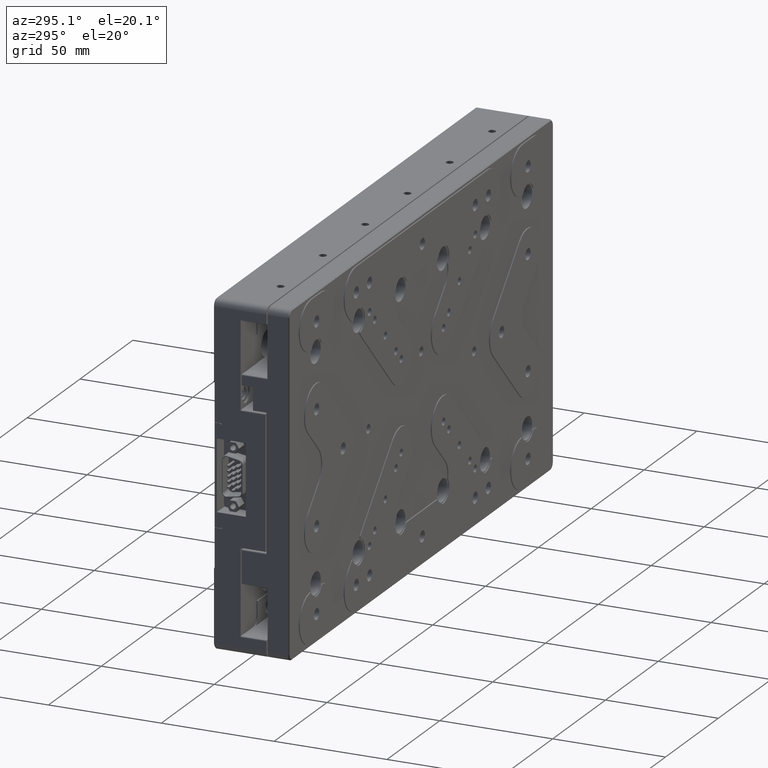
[diagram: clean part render]
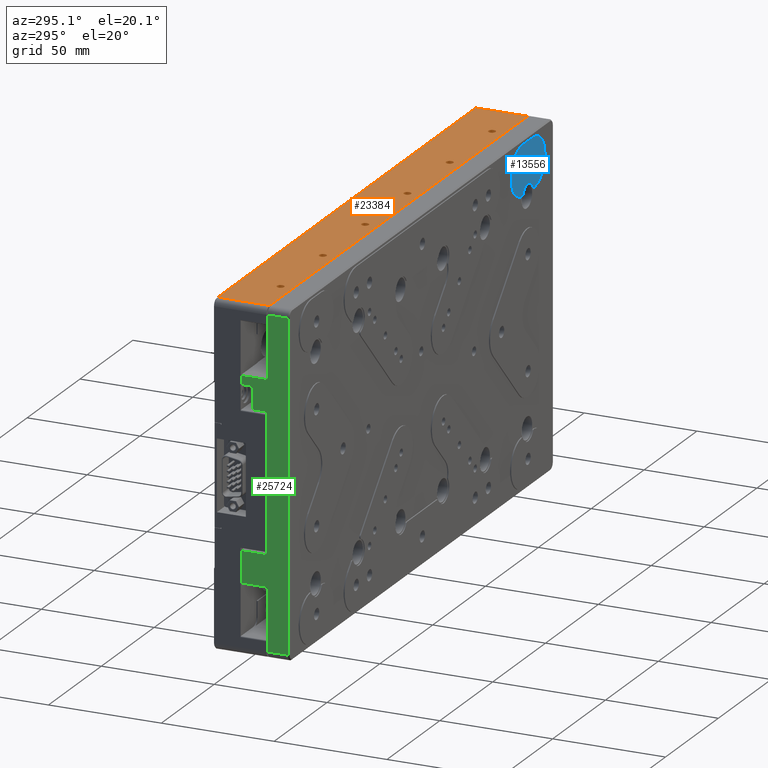
[diagram: same view with three faces highlighted in distinct colors, each labeled with its STEP entity id]
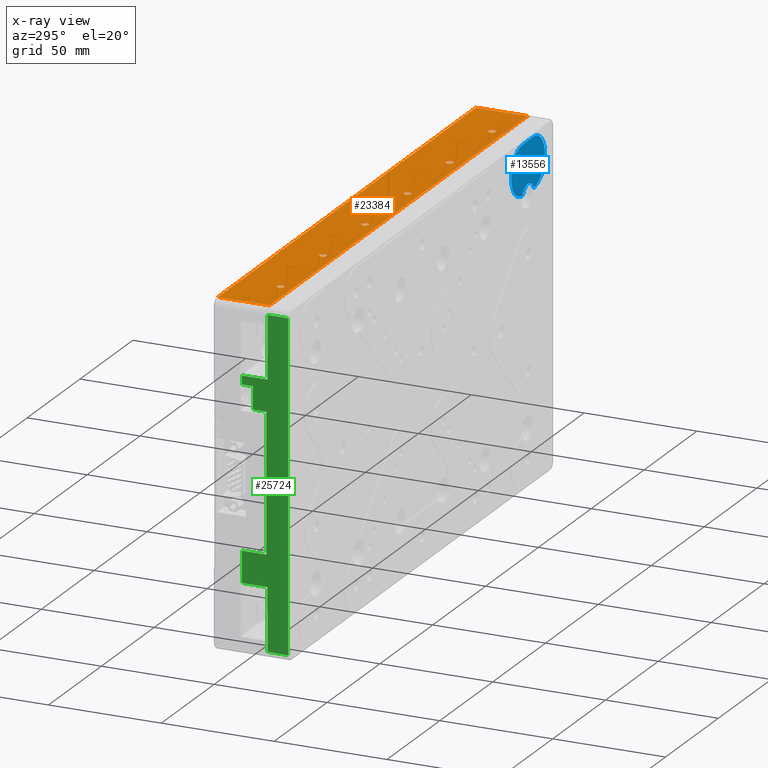
[diagram: x-ray of the same camera — body ghosted, the three highlighted faces saturated]
A machine part, auxiliary view with three faces highlighted in distinct colors.
The next image is the same camera in x-ray (body ghosted, the three faces saturated) — at least one of them is partly hidden behind the body in this view.
Their STEP definitions:

[orange] entity #23384 — the highlighted planar face has unit normal (0, 0, 1).
#173 = DIRECTION ( 'NONE',  ( 1.000000000000000000, 0.000000000000000000, 0.000000000000000000 ) ) ;
#374 = DIRECTION ( 'NONE',  ( 1.000000000000000000, 0.000000000000000000, 0.000000000000000000 ) ) ;
#1403 = ORIENTED_EDGE ( 'NONE', *, *, #21164, .T. ) ;
#1487 = FACE_BOUND ( 'NONE', #26889, .T. ) ;
#1881 = VERTEX_POINT ( 'NONE', #25818 ) ;
#2913 = LINE ( 'NONE', #19146, #31716 ) ;
#3650 = CIRCLE ( 'NONE', #24744, 1.649999999999998579 ) ;
#4187 = FACE_BOUND ( 'NONE', #8792, .T. ) ;
#4421 = CIRCLE ( 'NONE', #24353, 1.649999999999998579 ) ;
#4467 = EDGE_LOOP ( 'NONE', ( #33427 ) ) ;
#5864 = DIRECTION ( 'NONE',  ( -1.000000000000000000, -0.000000000000000000, 0.000000000000000000 ) ) ;
#5935 = EDGE_CURVE ( 'NONE', #16592, #9941, #30504, .T. ) ;
#5996 = LINE ( 'NONE', #29929, #34675 ) ;
#6252 = CARTESIAN_POINT ( 'NONE',  ( 122.0000000000000000, 12.00000000000000000, 75.00000000000000000 ) ) ;
#6528 = ORIENTED_EDGE ( 'NONE', *, *, #13417, .T. ) ;
#6923 = VERTEX_POINT ( 'NONE', #35352 ) ;
#7217 = PLANE ( 'NONE',  #20629 ) ;
#7654 = VERTEX_POINT ( 'NONE', #31604 ) ;
#7782 = CARTESIAN_POINT ( 'NONE',  ( -18.35000000000000142, -6.000000000000000000, 75.00000000000000000 ) ) ;
#7848 = VECTOR ( 'NONE', #5864, 1000.000000000000000 ) ;
#8443 = DIRECTION ( 'NONE',  ( 1.000000000000000000, 0.000000000000000000, -0.000000000000000000 ) ) ;
#8455 = AXIS2_PLACEMENT_3D ( 'NONE', #27218, #21328, #13475 ) ;
#8759 = DIRECTION ( 'NONE',  ( -0.000000000000000000, -0.000000000000000000, -1.000000000000000000 ) ) ;
#8792 = EDGE_LOOP ( 'NONE', ( #1403 ) ) ;
#8888 = CARTESIAN_POINT ( 'NONE',  ( 100.0000000000000000, -6.000000000000000000, 75.00000000000000000 ) ) ;
#9066 = DIRECTION ( 'NONE',  ( 1.000000000000000000, 0.000000000000000000, 0.000000000000000000 ) ) ;
#9941 = VERTEX_POINT ( 'NONE', #21046 ) ;
#9993 = VECTOR ( 'NONE', #17141, 1000.000000000000000 ) ;
#10215 = ORIENTED_EDGE ( 'NONE', *, *, #12899, .T. ) ;
#10234 = FACE_OUTER_BOUND ( 'NONE', #12055, .T. ) ;
#10257 = EDGE_LOOP ( 'NONE', ( #13975 ) ) ;
#10327 = VERTEX_POINT ( 'NONE', #34968 ) ;
#10621 = DIRECTION ( 'NONE',  ( -0.000000000000000000, -0.000000000000000000, -1.000000000000000000 ) ) ;
#12055 = EDGE_LOOP ( 'NONE', ( #35313, #12094, #25509, #6528, #10215, #29852 ) ) ;
#12094 = ORIENTED_EDGE ( 'NONE', *, *, #29578, .T. ) ;
#12374 = CIRCLE ( 'NONE', #15816, 1.649999999999998579 ) ;
#12386 = FACE_BOUND ( 'NONE', #20903, .T. ) ;
#12899 = EDGE_CURVE ( 'NONE', #6923, #16592, #33394, .T. ) ;
#13085 = AXIS2_PLACEMENT_3D ( 'NONE', #8888, #24953, #9066 ) ;
#13086 = DIRECTION ( 'NONE',  ( 0.000000000000000000, 0.000000000000000000, 1.000000000000000000 ) ) ;
#13417 = EDGE_CURVE ( 'NONE', #1881, #6923, #2913, .T. ) ;
#13475 = DIRECTION ( 'NONE',  ( 1.000000000000000000, 0.000000000000000000, 0.000000000000000000 ) ) ;
#13676 = VERTEX_POINT ( 'NONE', #7782 ) ;
#13975 = ORIENTED_EDGE ( 'NONE', *, *, #31217, .T. ) ;
#14137 = CIRCLE ( 'NONE', #8455, 1.649999999999998579 ) ;
#15137 = DIRECTION ( 'NONE',  ( 1.000000000000000000, 0.000000000000000000, 0.000000000000000000 ) ) ;
#15554 = ORIENTED_EDGE ( 'NONE', *, *, #16958, .T. ) ;
#15759 = EDGE_CURVE ( 'NONE', #7654, #7654, #3650, .T. ) ;
#15816 = AXIS2_PLACEMENT_3D ( 'NONE', #35090, #10621, #26534 ) ;
#15853 = CARTESIAN_POINT ( 'NONE',  ( 122.0000000138499985, 11.50000000097125152, 74.99999999967624831 ) ) ;
#16592 = VERTEX_POINT ( 'NONE', #15853 ) ;
#16825 = DIRECTION ( 'NONE',  ( -0.000000000000000000, -0.000000000000000000, -1.000000000000000000 ) ) ;
#16917 = CARTESIAN_POINT ( 'NONE',  ( 101.6500000000000057, -6.000000000000000000, 75.00000000000000000 ) ) ;
#16958 = EDGE_CURVE ( 'NONE', #10327, #10327, #12374, .T. ) ;
#17141 = DIRECTION ( 'NONE',  ( -0.000000000000000000, 1.000000000000000000, 0.000000000000000000 ) ) ;
#17804 = CARTESIAN_POINT ( 'NONE',  ( -58.35000000000000142, -6.000000000000000000, 75.00000000000000000 ) ) ;
#18099 = CARTESIAN_POINT ( 'NONE',  ( -40.00000000000000711, 11.50000000000000000, 75.00000000000000000 ) ) ;
#18283 = VERTEX_POINT ( 'NONE', #23470 ) ;
#18445 = DIRECTION ( 'NONE',  ( 1.000000000000000000, 0.000000000000000000, -0.000000000000000000 ) ) ;
#19146 = CARTESIAN_POINT ( 'NONE',  ( -125.0000000000000000, -11.50000000000000000, 75.00000000000000000 ) ) ;
#19759 = EDGE_CURVE ( 'NONE', #32747, #9941, #5996, .T. ) ;
#20629 = AXIS2_PLACEMENT_3D ( 'NONE', #29004, #13086, #18445 ) ;
#20903 = EDGE_LOOP ( 'NONE', ( #30690 ) ) ;
#20923 = CIRCLE ( 'NONE', #32892, 1.649999999999998579 ) ;
#20949 = VECTOR ( 'NONE', #22456, 1000.000000000000000 ) ;
#21046 = CARTESIAN_POINT ( 'NONE',  ( 40.00000000000000000, 11.50000000064749983, 75.00000000000000000 ) ) ;
#21164 = EDGE_CURVE ( 'NONE', #30669, #30669, #35340, .T. ) ;
#21328 = DIRECTION ( 'NONE',  ( -0.000000000000000000, -0.000000000000000000, -1.000000000000000000 ) ) ;
#22456 = DIRECTION ( 'NONE',  ( 0.000000000000000000, -1.000000000000000000, -0.000000000000000000 ) ) ;
#23201 = VECTOR ( 'NONE', #24185, 1000.000000000000000 ) ;
#23276 = FACE_BOUND ( 'NONE', #32245, .T. ) ;
#23384 = ADVANCED_FACE ( 'NONE', ( #4187, #25964, #1487, #12386, #23276, #34182, #10234 ), #7217, .T. ) ;
#23470 = CARTESIAN_POINT ( 'NONE',  ( 61.64999999999999858, -6.000000000000000000, 75.00000000000000000 ) ) ;
#23592 = VERTEX_POINT ( 'NONE', #33264 ) ;
#23667 = LINE ( 'NONE', #34909, #23201 ) ;
#23862 = CARTESIAN_POINT ( 'NONE',  ( -20.00000000000000000, -6.000000000000000000, 75.00000000000000000 ) ) ;
#24185 = DIRECTION ( 'NONE',  ( -1.000000000000000000, -0.000000000000000000, 0.000000000000000000 ) ) ;
#24353 = AXIS2_PLACEMENT_3D ( 'NONE', #23862, #34933, #15137 ) ;
#24642 = CARTESIAN_POINT ( 'NONE',  ( -60.00000000000000000, -6.000000000000000000, 75.00000000000000000 ) ) ;
#24744 = AXIS2_PLACEMENT_3D ( 'NONE', #29691, #16825, #374 ) ;
#24953 = DIRECTION ( 'NONE',  ( -0.000000000000000000, -0.000000000000000000, -1.000000000000000000 ) ) ;
#25200 = EDGE_CURVE ( 'NONE', #31377, #31377, #20923, .T. ) ;
#25509 = ORIENTED_EDGE ( 'NONE', *, *, #25772, .T. ) ;
#25772 = EDGE_CURVE ( 'NONE', #23592, #1881, #31382, .T. ) ;
#25818 = CARTESIAN_POINT ( 'NONE',  ( -122.0000000000000000, -11.50000000000000178, 75.00000000000000000 ) ) ;
#25831 = EDGE_CURVE ( 'NONE', #13676, #13676, #4421, .T. ) ;
#25964 = FACE_BOUND ( 'NONE', #4467, .T. ) ;
#26534 = DIRECTION ( 'NONE',  ( 1.000000000000000000, 0.000000000000000000, 0.000000000000000000 ) ) ;
#26889 = EDGE_LOOP ( 'NONE', ( #29940 ) ) ;
#27218 = CARTESIAN_POINT ( 'NONE',  ( 60.00000000000000000, -6.000000000000000000, 75.00000000000000000 ) ) ;
#27810 = CARTESIAN_POINT ( 'NONE',  ( -122.0000000000000000, 12.00000000000000000, 75.00000000000000000 ) ) ;
#28337 = CARTESIAN_POINT ( 'NONE',  ( -125.0000000000000000, 11.50000000258999933, 75.00000000000000000 ) ) ;
#29004 = CARTESIAN_POINT ( 'NONE',  ( -125.0000000000000000, 12.00000000000000000, 75.00000000000000000 ) ) ;
#29578 = EDGE_CURVE ( 'NONE', #32747, #23592, #23667, .T. ) ;
#29691 = CARTESIAN_POINT ( 'NONE',  ( -100.0000000000000000, -6.000000000000000000, 75.00000000000000000 ) ) ;
#29852 = ORIENTED_EDGE ( 'NONE', *, *, #5935, .T. ) ;
#29929 = CARTESIAN_POINT ( 'NONE',  ( 0.000000000000000000, 11.50000000000000000, 75.00000000000000000 ) ) ;
#29940 = ORIENTED_EDGE ( 'NONE', *, *, #25200, .T. ) ;
#30504 = LINE ( 'NONE', #28337, #7848 ) ;
#30669 = VERTEX_POINT ( 'NONE', #16917 ) ;
#30690 = ORIENTED_EDGE ( 'NONE', *, *, #25831, .T. ) ;
#31217 = EDGE_CURVE ( 'NONE', #18283, #18283, #14137, .T. ) ;
#31377 = VERTEX_POINT ( 'NONE', #17804 ) ;
#31382 = LINE ( 'NONE', #27810, #20949 ) ;
#31604 = CARTESIAN_POINT ( 'NONE',  ( -98.35000000000000853, -6.000000000000000000, 75.00000000000000000 ) ) ;
#31716 = VECTOR ( 'NONE', #8443, 1000.000000000000000 ) ;
#32245 = EDGE_LOOP ( 'NONE', ( #15554 ) ) ;
#32747 = VERTEX_POINT ( 'NONE', #18099 ) ;
#32892 = AXIS2_PLACEMENT_3D ( 'NONE', #24642, #8759, #173 ) ;
#33138 = DIRECTION ( 'NONE',  ( 1.000000000000000000, 0.000000000000000000, -0.000000000000000000 ) ) ;
#33264 = CARTESIAN_POINT ( 'NONE',  ( -122.0000000000000000, 11.50000000693796665, 74.99999999309069665 ) ) ;
#33394 = LINE ( 'NONE', #6252, #9993 ) ;
#33427 = ORIENTED_EDGE ( 'NONE', *, *, #15759, .T. ) ;
#34182 = FACE_BOUND ( 'NONE', #10257, .T. ) ;
#34675 = VECTOR ( 'NONE', #33138, 1000.000000000000000 ) ;
#34909 = CARTESIAN_POINT ( 'NONE',  ( -125.0000000000000000, 11.50000000000000000, 75.00000000000000000 ) ) ;
#34933 = DIRECTION ( 'NONE',  ( -0.000000000000000000, -0.000000000000000000, -1.000000000000000000 ) ) ;
#34968 = CARTESIAN_POINT ( 'NONE',  ( 21.64999999999999858, -6.000000000000000000, 75.00000000000000000 ) ) ;
#35090 = CARTESIAN_POINT ( 'NONE',  ( 20.00000000000000000, -6.000000000000000000, 75.00000000000000000 ) ) ;
#35313 = ORIENTED_EDGE ( 'NONE', *, *, #19759, .F. ) ;
#35340 = CIRCLE ( 'NONE', #13085, 1.649999999999998579 ) ;
#35352 = CARTESIAN_POINT ( 'NONE',  ( 122.0000000000000000, -11.50000000000000000, 75.00000000000000000 ) ) ;

[blue] entity #13556 — the highlighted planar face has unit normal (0, -1, 0).
#41 = EDGE_LOOP ( 'NONE', ( #32789, #5609, #271, #30279, #33333, #9516 ) ) ;
#271 = ORIENTED_EDGE ( 'NONE', *, *, #29520, .F. ) ;
#568 = DIRECTION ( 'NONE',  ( 0.000000000000000000, -0.000000000000000000, -1.000000000000000000 ) ) ;
#974 = VECTOR ( 'NONE', #1008, 1000.000000000000000 ) ;
#1008 = DIRECTION ( 'NONE',  ( -1.000000000000000000, 0.000000000000000000, -0.000000000000000000 ) ) ;
#1418 = VERTEX_POINT ( 'NONE', #9788 ) ;
#2406 = DIRECTION ( 'NONE',  ( -0.000000000000000000, 1.000000000000000000, -0.000000000000000000 ) ) ;
#2860 = CIRCLE ( 'NONE', #29109, 1.000000000000000888 ) ;
#3372 = AXIS2_PLACEMENT_3D ( 'NONE', #5265, #21674, #32583 ) ;
#4903 = VERTEX_POINT ( 'NONE', #31904 ) ;
#4962 = CARTESIAN_POINT ( 'NONE',  ( 104.8666384622328707, -22.00000000000000000, 52.06238757370267223 ) ) ;
#5076 = CIRCLE ( 'NONE', #3372, 1.000000000000000888 ) ;
#5151 = DIRECTION ( 'NONE',  ( -0.000000000000000000, 1.000000000000000000, -0.000000000000000000 ) ) ;
#5265 = CARTESIAN_POINT ( 'NONE',  ( 105.7514818190000057, -22.00000000000000000, 52.52827622345999714 ) ) ;
#5609 = ORIENTED_EDGE ( 'NONE', *, *, #27432, .F. ) ;
#5891 = EDGE_CURVE ( 'NONE', #21570, #4903, #33707, .T. ) ;
#6483 = FACE_OUTER_BOUND ( 'NONE', #41, .T. ) ;
#7349 = EDGE_LOOP ( 'NONE', ( #30831 ) ) ;
#8113 = EDGE_CURVE ( 'NONE', #33616, #1418, #2860, .T. ) ;
#8272 = DIRECTION ( 'NONE',  ( 0.000000000000000000, 0.000000000000000000, 1.000000000000000000 ) ) ;
#8386 = CIRCLE ( 'NONE', #11240, 10.99999999999999645 ) ;
#9153 = CARTESIAN_POINT ( 'NONE',  ( -125.0000000000000000, -22.00000000000000000, 75.00000000000000000 ) ) ;
#9516 = ORIENTED_EDGE ( 'NONE', *, *, #8113, .F. ) ;
#9788 = CARTESIAN_POINT ( 'NONE',  ( 94.17336999908440021, -22.00000000000000000, 51.53110384580170233 ) ) ;
#9819 = EDGE_CURVE ( 'NONE', #1418, #4903, #25756, .T. ) ;
#10332 = CARTESIAN_POINT ( 'NONE',  ( 95.00000000000000000, -22.00000000000000000, 62.50000000000000000 ) ) ;
#10946 = DIRECTION ( 'NONE',  ( 0.000000000000000000, 1.000000000000000000, 0.000000000000000000 ) ) ;
#11156 = CARTESIAN_POINT ( 'NONE',  ( 100.0000000000000000, -22.00000000000000000, 62.50000000000000000 ) ) ;
#11240 = AXIS2_PLACEMENT_3D ( 'NONE', #21329, #2406, #26525 ) ;
#11506 = DIRECTION ( 'NONE',  ( 0.000000000000000000, 0.000000000000000000, -1.000000000000000000 ) ) ;
#12530 = DIRECTION ( 'NONE',  ( -0.000000000000000000, 1.000000000000000000, -0.000000000000000000 ) ) ;
#13431 = EDGE_CURVE ( 'NONE', #33616, #24123, #26586, .T. ) ;
#13556 = ADVANCED_FACE ( 'NONE', ( #25574, #6483 ), #33096, .T. ) ;
#16317 = AXIS2_PLACEMENT_3D ( 'NONE', #19324, #10946, #8272 ) ;
#17005 = CARTESIAN_POINT ( 'NONE',  ( 105.8266300008999963, -22.00000000000000000, 51.53110384580300973 ) ) ;
#17447 = VERTEX_POINT ( 'NONE', #28333 ) ;
#17775 = AXIS2_PLACEMENT_3D ( 'NONE', #10332, #5151, #29436 ) ;
#19324 = CARTESIAN_POINT ( 'NONE',  ( 100.0000000000000000, -22.00000000000000000, 49.50000000000000000 ) ) ;
#19684 = DIRECTION ( 'NONE',  ( 0.000000000000000000, -1.000000000000000000, 0.000000000000000000 ) ) ;
#19764 = CARTESIAN_POINT ( 'NONE',  ( 95.00000000000000000, -22.00000000000000000, 73.50000000000000000 ) ) ;
#20068 = CIRCLE ( 'NONE', #27492, 2.500000000000002220 ) ;
#21329 = CARTESIAN_POINT ( 'NONE',  ( 105.0000000000000000, -22.00000000000000000, 62.50000000000000000 ) ) ;
#21570 = VERTEX_POINT ( 'NONE', #33279 ) ;
#21674 = DIRECTION ( 'NONE',  ( 0.000000000000000000, 1.000000000000000000, 0.000000000000000000 ) ) ;
#22031 = DIRECTION ( 'NONE',  ( -0.000000000000000000, 1.000000000000000000, -0.000000000000000000 ) ) ;
#23158 = EDGE_CURVE ( 'NONE', #17447, #17447, #20068, .T. ) ;
#23232 = CARTESIAN_POINT ( 'NONE',  ( 94.24851818099000411, -22.00000000000000000, 52.52827622345999714 ) ) ;
#24123 = VERTEX_POINT ( 'NONE', #4962 ) ;
#24745 = VERTEX_POINT ( 'NONE', #17005 ) ;
#25574 = FACE_BOUND ( 'NONE', #7349, .T. ) ;
#25756 = CIRCLE ( 'NONE', #17775, 10.99999999999999645 ) ;
#26525 = DIRECTION ( 'NONE',  ( 0.000000000000000000, 0.000000000000000000, -1.000000000000000000 ) ) ;
#26586 = CIRCLE ( 'NONE', #16317, 5.499999999999998224 ) ;
#27432 = EDGE_CURVE ( 'NONE', #24745, #24123, #5076, .T. ) ;
#27492 = AXIS2_PLACEMENT_3D ( 'NONE', #11156, #22031, #11506 ) ;
#28333 = CARTESIAN_POINT ( 'NONE',  ( 100.0000000000000000, -22.00000000000000000, 60.00000000000000000 ) ) ;
#28380 = CARTESIAN_POINT ( 'NONE',  ( 95.13336153775856019, -22.00000000000000000, 52.06238757369442993 ) ) ;
#28607 = DIRECTION ( 'NONE',  ( 2.775557561562888827E-14, 0.000000000000000000, -1.000000000000000000 ) ) ;
#29109 = AXIS2_PLACEMENT_3D ( 'NONE', #23232, #12530, #28607 ) ;
#29436 = DIRECTION ( 'NONE',  ( 0.000000000000000000, 0.000000000000000000, -1.000000000000000000 ) ) ;
#29520 = EDGE_CURVE ( 'NONE', #21570, #24745, #8386, .T. ) ;
#30279 = ORIENTED_EDGE ( 'NONE', *, *, #5891, .T. ) ;
#30831 = ORIENTED_EDGE ( 'NONE', *, *, #23158, .T. ) ;
#30905 = AXIS2_PLACEMENT_3D ( 'NONE', #9153, #19684, #568 ) ;
#31904 = CARTESIAN_POINT ( 'NONE',  ( 95.00000000000000000, -22.00000000000000000, 73.50000000000000000 ) ) ;
#32583 = DIRECTION ( 'NONE',  ( 0.000000000000000000, 0.000000000000000000, 1.000000000000000000 ) ) ;
#32789 = ORIENTED_EDGE ( 'NONE', *, *, #13431, .T. ) ;
#33096 = PLANE ( 'NONE',  #30905 ) ;
#33279 = CARTESIAN_POINT ( 'NONE',  ( 105.0000000000000000, -22.00000000000000000, 73.50000000000000000 ) ) ;
#33333 = ORIENTED_EDGE ( 'NONE', *, *, #9819, .F. ) ;
#33616 = VERTEX_POINT ( 'NONE', #28380 ) ;
#33707 = LINE ( 'NONE', #19764, #974 ) ;

[green] entity #25724 — the highlighted planar face has unit normal (1, 0, -0).
#495 = CARTESIAN_POINT ( 'NONE',  ( -125.0000000000000000, -11.50000000000000000, 55.00000000000000000 ) ) ;
#728 = ORIENTED_EDGE ( 'NONE', *, *, #3723, .F. ) ;
#745 = CARTESIAN_POINT ( 'NONE',  ( -125.0000000000000000, -12.00000000000000000, -55.00000000000000000 ) ) ;
#919 = EDGE_CURVE ( 'NONE', #14259, #28487, #30915, .T. ) ;
#930 = ORIENTED_EDGE ( 'NONE', *, *, #26510, .F. ) ;
#1253 = DIRECTION ( 'NONE',  ( 0.000000000000000000, -0.000000000000000000, 1.000000000000000000 ) ) ;
#1271 = LINE ( 'NONE', #28609, #32088 ) ;
#2218 = CARTESIAN_POINT ( 'NONE',  ( -125.0000000000000000, -11.50000000000000000, -30.00000000000000000 ) ) ;
#2313 = VERTEX_POINT ( 'NONE', #4994 ) ;
#2450 = VECTOR ( 'NONE', #12032, 1000.000000000000000 ) ;
#2537 = LINE ( 'NONE', #10403, #31276 ) ;
#2652 = VECTOR ( 'NONE', #34331, 1000.000000000000000 ) ;
#2757 = VECTOR ( 'NONE', #16002, 1000.000000000000000 ) ;
#2762 = DIRECTION ( 'NONE',  ( 0.000000000000000000, -0.000000000000000000, 1.000000000000000000 ) ) ;
#2953 = VERTEX_POINT ( 'NONE', #19571 ) ;
#3501 = CARTESIAN_POINT ( 'NONE',  ( -125.0000000000000000, -0.5000000000000002220, 44.35000000000000142 ) ) ;
#3723 = EDGE_CURVE ( 'NONE', #2313, #25895, #7091, .T. ) ;
#3952 = VECTOR ( 'NONE', #18466, 1000.000000000000000 ) ;
#4018 = VECTOR ( 'NONE', #7366, 1000.000000000000000 ) ;
#4111 = EDGE_CURVE ( 'NONE', #28258, #17538, #29137, .T. ) ;
#4259 = VECTOR ( 'NONE', #1253, 1000.000000000000000 ) ;
#4295 = EDGE_CURVE ( 'NONE', #16536, #31002, #21603, .T. ) ;
#4325 = LINE ( 'NONE', #25570, #2652 ) ;
#4422 = VERTEX_POINT ( 'NONE', #26237 ) ;
#4515 = ORIENTED_EDGE ( 'NONE', *, *, #27310, .F. ) ;
#4796 = CARTESIAN_POINT ( 'NONE',  ( -125.0000000000000000, -11.90000000000000036, -44.35000000000000142 ) ) ;
#4994 = CARTESIAN_POINT ( 'NONE',  ( -125.0000000000000000, -12.00000000000000355, -72.00000001382001358 ) ) ;
#5994 = ORIENTED_EDGE ( 'NONE', *, *, #4111, .F. ) ;
#6299 = DIRECTION ( 'NONE',  ( 0.000000000000000000, 1.000000000000000000, 0.000000000000000000 ) ) ;
#6567 = FACE_OUTER_BOUND ( 'NONE', #32102, .T. ) ;
#7091 = LINE ( 'NONE', #33874, #21401 ) ;
#7104 = CARTESIAN_POINT ( 'NONE',  ( -125.0000000000000000, -12.00000000000000178, -55.00000000000000000 ) ) ;
#7366 = DIRECTION ( 'NONE',  ( 0.000000000000000000, 1.000000000000000000, 0.000000000000000000 ) ) ;
#7391 = EDGE_CURVE ( 'NONE', #13233, #16536, #15642, .T. ) ;
#7590 = LINE ( 'NONE', #2218, #3952 ) ;
#7675 = EDGE_CURVE ( 'NONE', #19620, #35068, #30973, .T. ) ;
#8045 = CARTESIAN_POINT ( 'NONE',  ( -125.0000000000000000, 0.000000000000000000, -30.50000000000000000 ) ) ;
#8067 = EDGE_CURVE ( 'NONE', #17538, #34925, #24847, .T. ) ;
#8885 = DIRECTION ( 'NONE',  ( 1.000000000000000000, 0.000000000000000000, -0.000000000000000000 ) ) ;
#9062 = CARTESIAN_POINT ( 'NONE',  ( -125.0000000000000000, 0.000000000000000000, 0.000000000000000000 ) ) ;
#9133 = DIRECTION ( 'NONE',  ( 0.000000000000000000, 1.000000000000000000, 0.000000000000000000 ) ) ;
#9456 = CARTESIAN_POINT ( 'NONE',  ( -125.0000000000000000, -11.90000000000000036, 44.35000000000000142 ) ) ;
#10037 = ORIENTED_EDGE ( 'NONE', *, *, #23709, .F. ) ;
#10051 = CARTESIAN_POINT ( 'NONE',  ( -124.9999999974050127, -21.00000000259499799, -1.065814103639999922E-14 ) ) ;
#10366 = DIRECTION ( 'NONE',  ( -0.000000000000000000, -1.000000000000000000, -0.000000000000000000 ) ) ;
#10403 = CARTESIAN_POINT ( 'NONE',  ( -125.0000000000000000, -5.500000000000000000, 0.000000000000000000 ) ) ;
#10735 = ORIENTED_EDGE ( 'NONE', *, *, #919, .F. ) ;
#10993 = CARTESIAN_POINT ( 'NONE',  ( -125.0000000000000000, -0.5000000000000000000, 0.000000000000000000 ) ) ;
#11281 = DIRECTION ( 'NONE',  ( 0.000000000000000000, -0.000000000000000000, 1.000000000000000000 ) ) ;
#11560 = VECTOR ( 'NONE', #2762, 1000.000000000000000 ) ;
#12032 = DIRECTION ( 'NONE',  ( 0.000000000000000000, -0.000000000000000000, 1.000000000000000000 ) ) ;
#12411 = ORIENTED_EDGE ( 'NONE', *, *, #31936, .F. ) ;
#13233 = VERTEX_POINT ( 'NONE', #14066 ) ;
#13424 = CARTESIAN_POINT ( 'NONE',  ( -125.0000000000000000, -5.499999999999999112, 30.50000000000000000 ) ) ;
#14066 = CARTESIAN_POINT ( 'NONE',  ( -125.0000000000000000, -0.5000000000000002220, -44.35000000000000142 ) ) ;
#14169 = VECTOR ( 'NONE', #9133, 1000.000000000000000 ) ;
#14259 = VERTEX_POINT ( 'NONE', #22618 ) ;
#14440 = CARTESIAN_POINT ( 'NONE',  ( -125.0000000000000000, 27.52740000000000009, -72.00000002763999873 ) ) ;
#14581 = EDGE_CURVE ( 'NONE', #33166, #32770, #28644, .T. ) ;
#15040 = DIRECTION ( 'NONE',  ( -0.000000000000000000, -1.000000000000000000, -0.000000000000000000 ) ) ;
#15122 = DIRECTION ( 'NONE',  ( 0.000000000000000000, -0.000000000000000000, 1.000000000000000000 ) ) ;
#15642 = LINE ( 'NONE', #32236, #11560 ) ;
#15748 = CARTESIAN_POINT ( 'NONE',  ( -125.0000000000000000, 0.000000000000000000, -44.35000000000000142 ) ) ;
#16002 = DIRECTION ( 'NONE',  ( 0.000000000000000000, -0.000000000000000000, 1.000000000000000000 ) ) ;
#16509 = ORIENTED_EDGE ( 'NONE', *, *, #4295, .F. ) ;
#16536 = VERTEX_POINT ( 'NONE', #21907 ) ;
#16607 = ORIENTED_EDGE ( 'NONE', *, *, #14581, .F. ) ;
#16959 = ORIENTED_EDGE ( 'NONE', *, *, #21760, .F. ) ;
#17455 = DIRECTION ( 'NONE',  ( -0.000000000000000000, 0.000000000000000000, -1.000000000000000000 ) ) ;
#17538 = VERTEX_POINT ( 'NONE', #9456 ) ;
#18347 = EDGE_CURVE ( 'NONE', #2953, #28258, #27068, .T. ) ;
#18466 = DIRECTION ( 'NONE',  ( 0.000000000000000000, -0.000000000000000000, 1.000000000000000000 ) ) ;
#18608 = DIRECTION ( 'NONE',  ( 0.000000000000000000, -0.000000000000000000, 1.000000000000000000 ) ) ;
#19571 = CARTESIAN_POINT ( 'NONE',  ( -125.0000000000000000, -0.5000000000000002220, 40.50000000000000000 ) ) ;
#19620 = VERTEX_POINT ( 'NONE', #22794 ) ;
#20753 = LINE ( 'NONE', #15748, #4018 ) ;
#21049 = ORIENTED_EDGE ( 'NONE', *, *, #24714, .F. ) ;
#21284 = DIRECTION ( 'NONE',  ( -0.000000000000000000, -0.000000000000000000, -1.000000000000000000 ) ) ;
#21401 = VECTOR ( 'NONE', #15122, 1000.000000000000000 ) ;
#21603 = LINE ( 'NONE', #8045, #28581 ) ;
#21760 = EDGE_CURVE ( 'NONE', #35068, #13233, #20753, .T. ) ;
#21806 = VECTOR ( 'NONE', #21284, 1000.000000000000000 ) ;
#21907 = CARTESIAN_POINT ( 'NONE',  ( -125.0000000000000000, -0.5000000000000002220, -30.50000000000000000 ) ) ;
#22249 = CARTESIAN_POINT ( 'NONE',  ( -125.0000000000000000, -11.49999999999999822, -30.50000000000000000 ) ) ;
#22334 = ORIENTED_EDGE ( 'NONE', *, *, #7675, .F. ) ;
#22618 = CARTESIAN_POINT ( 'NONE',  ( -125.0000000000000000, -12.00000000000000178, 55.00000000000000000 ) ) ;
#22794 = CARTESIAN_POINT ( 'NONE',  ( -125.0000000000000000, -11.90000000000000036, -55.00000000000000000 ) ) ;
#23055 = CARTESIAN_POINT ( 'NONE',  ( -125.0000000000000000, 0.000000000000000000, 30.50000000000000000 ) ) ;
#23217 = AXIS2_PLACEMENT_3D ( 'NONE', #9062, #8885, #17455 ) ;
#23709 = EDGE_CURVE ( 'NONE', #25065, #2953, #1271, .T. ) ;
#23769 = CARTESIAN_POINT ( 'NONE',  ( -125.0000000000000000, -5.499999999999999112, 40.50000000000000000 ) ) ;
#24404 = VECTOR ( 'NONE', #30686, 1000.000000000000000 ) ;
#24700 = ORIENTED_EDGE ( 'NONE', *, *, #7391, .F. ) ;
#24714 = EDGE_CURVE ( 'NONE', #25895, #19620, #33271, .T. ) ;
#24832 = ORIENTED_EDGE ( 'NONE', *, *, #26518, .F. ) ;
#24847 = LINE ( 'NONE', #27546, #26999 ) ;
#24891 = ORIENTED_EDGE ( 'NONE', *, *, #31662, .F. ) ;
#24900 = EDGE_CURVE ( 'NONE', #28487, #33166, #4325, .T. ) ;
#24961 = LINE ( 'NONE', #14440, #24404 ) ;
#25065 = VERTEX_POINT ( 'NONE', #23769 ) ;
#25570 = CARTESIAN_POINT ( 'NONE',  ( -125.0000000000000000, 0.000000000000000000, 72.00000000000001421 ) ) ;
#25723 = CARTESIAN_POINT ( 'NONE',  ( -125.0000000000000000, -12.00000000000000000, 0.000000000000000000 ) ) ;
#25724 = ADVANCED_FACE ( 'NONE', ( #6567 ), #33708, .F. ) ;
#25789 = CARTESIAN_POINT ( 'NONE',  ( -124.9999999980381631, -21.00000000262110333, -72.00000002764002716 ) ) ;
#25895 = VERTEX_POINT ( 'NONE', #7104 ) ;
#25931 = CARTESIAN_POINT ( 'NONE',  ( -124.9999999917776137, -21.00000000885647466, 72.00000002226502716 ) ) ;
#26237 = CARTESIAN_POINT ( 'NONE',  ( -125.0000000000000000, -11.50000000000000178, 30.50000000000000000 ) ) ;
#26510 = EDGE_CURVE ( 'NONE', #32770, #2313, #24961, .T. ) ;
#26518 = EDGE_CURVE ( 'NONE', #34925, #14259, #33368, .T. ) ;
#26999 = VECTOR ( 'NONE', #11281, 1000.000000000000000 ) ;
#27068 = LINE ( 'NONE', #10993, #2757 ) ;
#27211 = CARTESIAN_POINT ( 'NONE',  ( -125.0000000000000000, -11.99999999999999822, 72.00000000000001421 ) ) ;
#27310 = EDGE_CURVE ( 'NONE', #31002, #4422, #7590, .T. ) ;
#27546 = CARTESIAN_POINT ( 'NONE',  ( -125.0000000000000000, -11.90000000000000036, 0.000000000000000000 ) ) ;
#28258 = VERTEX_POINT ( 'NONE', #3501 ) ;
#28284 = CARTESIAN_POINT ( 'NONE',  ( -125.0000000000000000, -11.90000000000000036, 0.000000000000000000 ) ) ;
#28420 = LINE ( 'NONE', #23055, #14169 ) ;
#28487 = VERTEX_POINT ( 'NONE', #27211 ) ;
#28581 = VECTOR ( 'NONE', #10366, 1000.000000000000000 ) ;
#28609 = CARTESIAN_POINT ( 'NONE',  ( -125.0000000000000000, 0.000000000000000000, 40.50000000000000000 ) ) ;
#28644 = LINE ( 'NONE', #10051, #21806 ) ;
#28943 = ORIENTED_EDGE ( 'NONE', *, *, #8067, .F. ) ;
#29137 = LINE ( 'NONE', #29309, #33407 ) ;
#29309 = CARTESIAN_POINT ( 'NONE',  ( -125.0000000000000000, 0.000000000000000000, 44.35000000000000142 ) ) ;
#30167 = DIRECTION ( 'NONE',  ( 0.000000000000000000, -1.000000000000000000, -0.000000000000000000 ) ) ;
#30267 = ORIENTED_EDGE ( 'NONE', *, *, #18347, .F. ) ;
#30469 = VERTEX_POINT ( 'NONE', #13424 ) ;
#30531 = CARTESIAN_POINT ( 'NONE',  ( -125.0000000000000000, -11.90000000000000036, 55.00000000000000000 ) ) ;
#30686 = DIRECTION ( 'NONE',  ( -0.000000000000000000, 1.000000000000000000, -0.000000000000000000 ) ) ;
#30915 = LINE ( 'NONE', #25723, #4259 ) ;
#30933 = DIRECTION ( 'NONE',  ( 0.000000000000000000, 1.000000000000000000, 0.000000000000000000 ) ) ;
#30973 = LINE ( 'NONE', #28284, #2450 ) ;
#31002 = VERTEX_POINT ( 'NONE', #22249 ) ;
#31260 = ORIENTED_EDGE ( 'NONE', *, *, #24900, .F. ) ;
#31276 = VECTOR ( 'NONE', #18608, 1000.000000000000000 ) ;
#31662 = EDGE_CURVE ( 'NONE', #30469, #25065, #2537, .T. ) ;
#31847 = VECTOR ( 'NONE', #30167, 1000.000000000000000 ) ;
#31936 = EDGE_CURVE ( 'NONE', #4422, #30469, #28420, .T. ) ;
#32088 = VECTOR ( 'NONE', #30933, 1000.000000000000000 ) ;
#32102 = EDGE_LOOP ( 'NONE', ( #10037, #24891, #12411, #4515, #16509, #24700, #16959, #22334, #21049, #728, #930, #16607, #31260, #10735, #24832, #28943, #5994, #30267 ) ) ;
#32236 = CARTESIAN_POINT ( 'NONE',  ( -125.0000000000000000, -0.5000000000000000000, 0.000000000000000000 ) ) ;
#32306 = VECTOR ( 'NONE', #6299, 1000.000000000000000 ) ;
#32770 = VERTEX_POINT ( 'NONE', #25789 ) ;
#33166 = VERTEX_POINT ( 'NONE', #25931 ) ;
#33271 = LINE ( 'NONE', #745, #32306 ) ;
#33368 = LINE ( 'NONE', #495, #31847 ) ;
#33407 = VECTOR ( 'NONE', #15040, 1000.000000000000000 ) ;
#33708 = PLANE ( 'NONE',  #23217 ) ;
#33874 = CARTESIAN_POINT ( 'NONE',  ( -125.0000000000000000, -12.00000000000000000, 0.000000000000000000 ) ) ;
#34331 = DIRECTION ( 'NONE',  ( -0.000000000000000000, -1.000000000000000000, -0.000000000000000000 ) ) ;
#34925 = VERTEX_POINT ( 'NONE', #30531 ) ;
#35068 = VERTEX_POINT ( 'NONE', #4796 ) ;